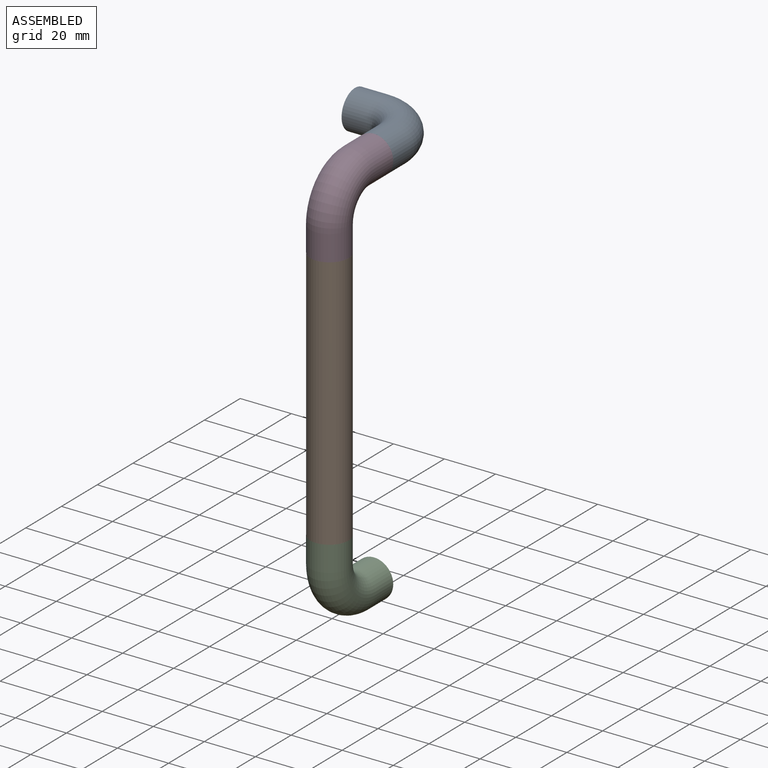
[diagram: assembled view]
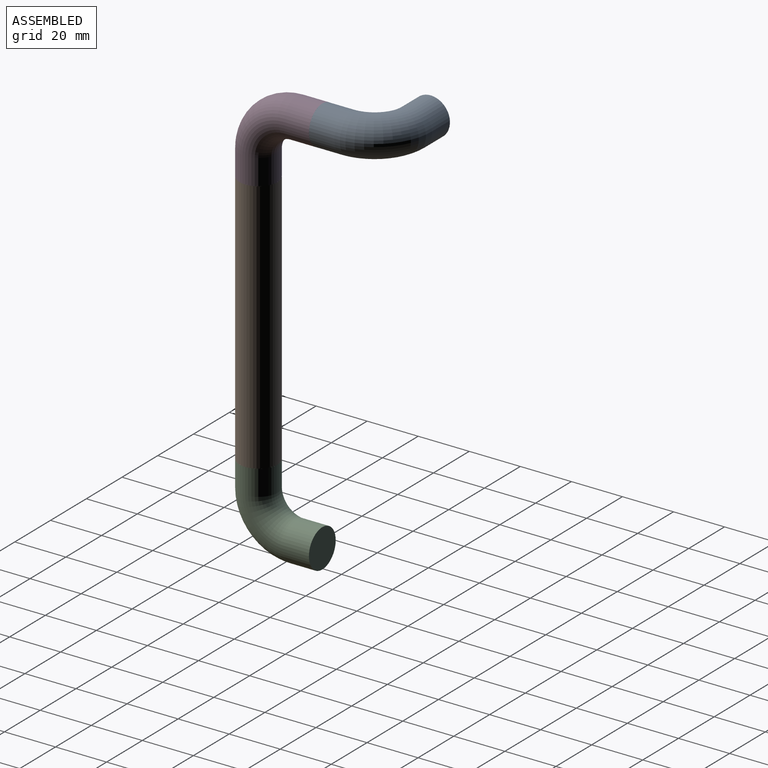
[diagram: assembled view, second angle]
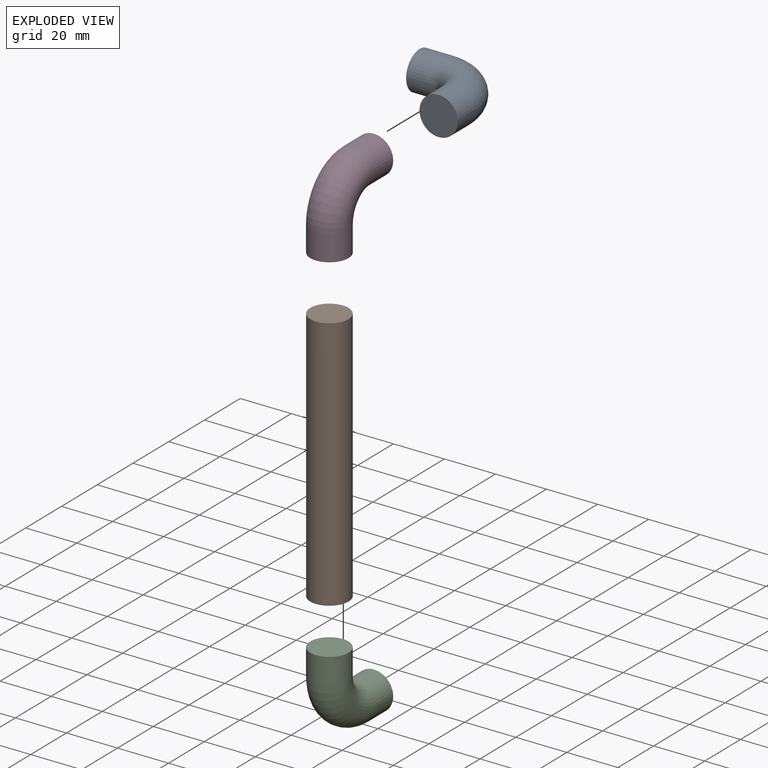
[diagram: exploded view]
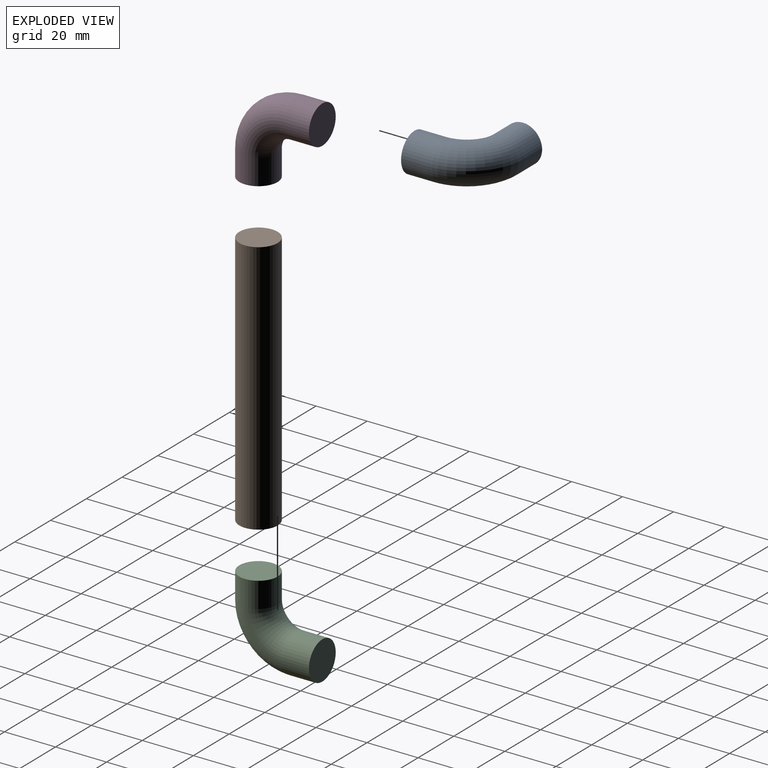
[diagram: exploded view, second angle]
ASSEMBLY  parts=4 mates=3
PART A: 5 faces, bbox 34.4x34.4x15 mm
  f0: plane 15x15mm, normal (0,-1,0), area 176.7mm2, adj f2
  f1: plane 15x15mm, normal (1,0,0), area 176.7mm2, adj f4
  f2: cylinder r=7.5mm len=15mm, axis (0,1,0), area 471.2mm2, adj f0,f3
  f3: torus R=15mm, axis (0,0,-1), area 1110.3mm2, adj f2,f4
  f4: cylinder r=7.5mm len=15mm, axis (1,0,0), area 471.2mm2, adj f1,f3
PART B: 3 faces, bbox 15x100x15 mm
  f0: cylinder r=7.5mm len=100mm, axis (0,1,0), area 4712.4mm2, adj f1,f2
  f1: plane 15x15mm, normal (0,-1,0), area 176.7mm2, adj f0
  f2: plane 15x15mm, normal (0,1,0), area 176.7mm2, adj f0
PART C: same geometry as A
PART D: same geometry as A
PLACE A rot(axis=(0,0,-1),90deg) t=(2310,4110,75)mm
PLACE B rot(axis=(-1,0,0),90deg) t=(2335,4060,-50)mm
PLACE C rot(axis=(-0.58,-0.58,0.58),120deg) t=(2335,4060,-50)mm
PLACE D rot(axis=(0.71,0,-0.71),180deg) t=(2335,4085,75)mm
MATE revolute B.f0 <-> C.f2  axis (0,0,-1) through (2335,4060,-50)mm
MATE revolute D.f4 <-> B.f0  axis (0,0,-1) through (2335,4060,50)mm
MATE revolute A.f4 <-> D.f2  axis (0,-1,0) through (2335,4085,75)mm
